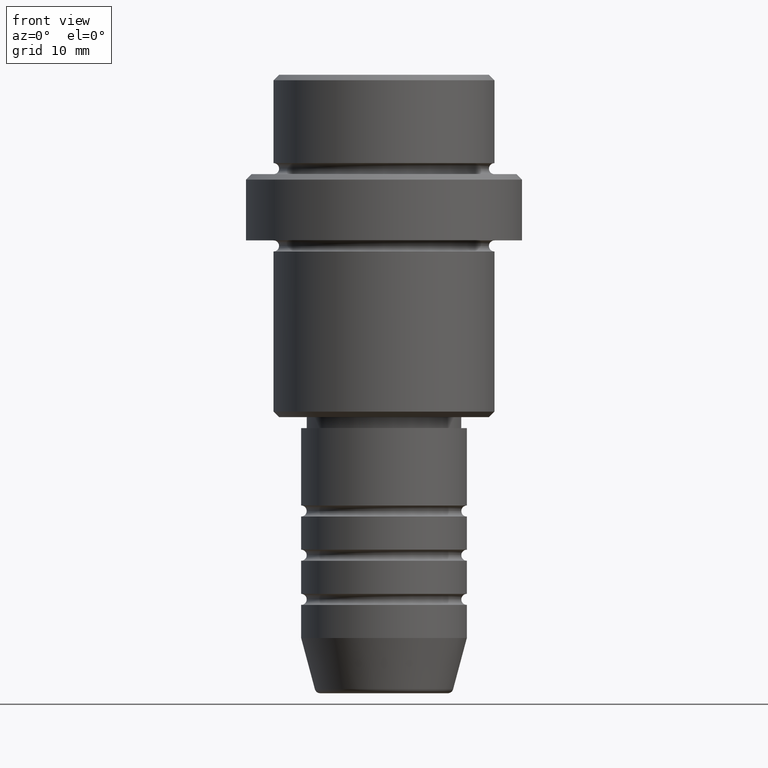
[diagram: clean part render]
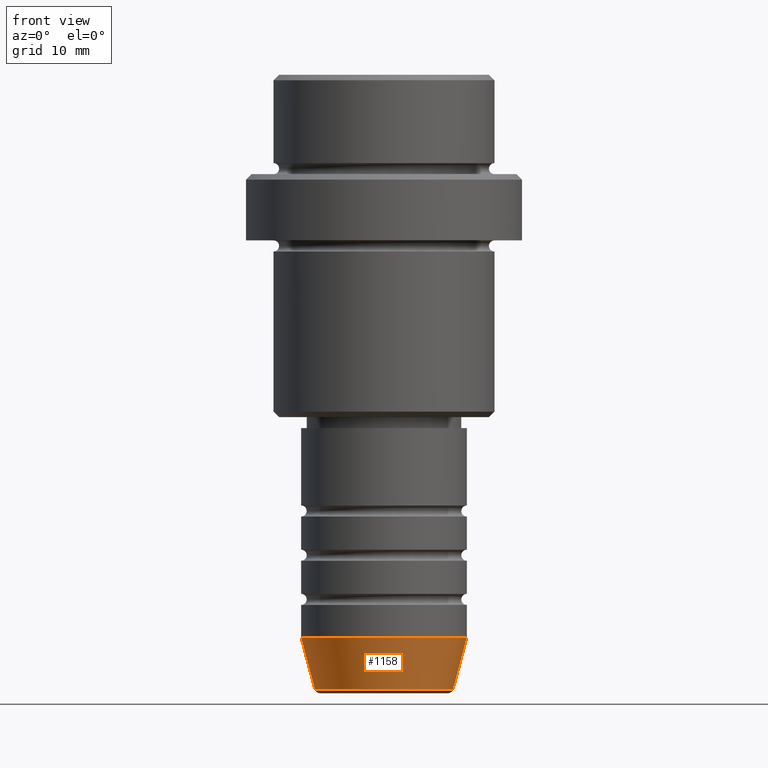
[diagram: same view with one face highlighted and labeled with its STEP entity id]
A machine part, front view. The second image highlights one B-rep face of the part: STEP entity #1158.
In plain terms, the highlighted conical surface has half-angle 15 deg.
Its self-contained STEP definition (entity closure, byte-faithful):
#43 = ORIENTED_EDGE ( 'NONE', *, *, #925, .F. ) ;
#70 = VERTEX_POINT ( 'NONE', #243 ) ;
#78 = CARTESIAN_POINT ( 'NONE',  ( 6.259553456999435106, 0.000000000000000000, -55.62940952255126348 ) ) ;
#93 = CARTESIAN_POINT ( 'NONE',  ( -7.500000000000000000, 9.184850993605147944E-16, -51.00000000000000711 ) ) ;
#178 = EDGE_CURVE ( 'NONE', #1251, #953, #504, .T. ) ;
#219 = VECTOR ( 'NONE', #1160, 1000.000000000000000 ) ;
#243 = CARTESIAN_POINT ( 'NONE',  ( -6.259553456999435106, 8.425296549405627514E-16, -55.62940952255126348 ) ) ;
#316 = CARTESIAN_POINT ( 'NONE',  ( 0.000000000000000000, 0.000000000000000000, -51.00000000000000711 ) ) ;
#328 = CIRCLE ( 'NONE', #645, 7.500000000000000000 ) ;
#357 = FACE_OUTER_BOUND ( 'NONE', #1025, .T. ) ;
#431 = LINE ( 'NONE', #871, #440 ) ;
#440 = VECTOR ( 'NONE', #1189, 1000.000000000000000 ) ;
#504 = LINE ( 'NONE', #725, #219 ) ;
#628 = CARTESIAN_POINT ( 'NONE',  ( 7.500000000000000000, 0.000000000000000000, -51.00000000000000711 ) ) ;
#645 = AXIS2_PLACEMENT_3D ( 'NONE', #316, #751, #1058 ) ;
#692 = DIRECTION ( 'NONE',  ( -0.000000000000000000, -0.000000000000000000, 1.000000000000000000 ) ) ;
#712 = CONICAL_SURFACE ( 'NONE', #830, 7.500000000000000000, 0.2617993877991500740 ) ;
#715 = DIRECTION ( 'NONE',  ( -0.000000000000000000, -0.000000000000000000, 1.000000000000000000 ) ) ;
#717 = ORIENTED_EDGE ( 'NONE', *, *, #178, .T. ) ;
#725 = CARTESIAN_POINT ( 'NONE',  ( 7.500000000000000000, 0.000000000000000000, -51.00000000000000711 ) ) ;
#751 = DIRECTION ( 'NONE',  ( -0.000000000000000000, -0.000000000000000000, 1.000000000000000000 ) ) ;
#792 = CARTESIAN_POINT ( 'NONE',  ( 0.000000000000000000, 0.000000000000000000, -51.00000000000000711 ) ) ;
#804 = AXIS2_PLACEMENT_3D ( 'NONE', #1370, #715, #1155 ) ;
#830 = AXIS2_PLACEMENT_3D ( 'NONE', #792, #692, #860 ) ;
#860 = DIRECTION ( 'NONE',  ( 1.000000000000000000, 0.000000000000000000, 0.000000000000000000 ) ) ;
#871 = CARTESIAN_POINT ( 'NONE',  ( -7.500000000000000000, 9.184850993605147944E-16, -51.00000000000000711 ) ) ;
#917 = ORIENTED_EDGE ( 'NONE', *, *, #1303, .T. ) ;
#919 = CIRCLE ( 'NONE', #804, 6.259553456999435106 ) ;
#925 = EDGE_CURVE ( 'NONE', #1398, #953, #328, .T. ) ;
#953 = VERTEX_POINT ( 'NONE', #628 ) ;
#1008 = ORIENTED_EDGE ( 'NONE', *, *, #1348, .F. ) ;
#1025 = EDGE_LOOP ( 'NONE', ( #1008, #917, #717, #43 ) ) ;
#1058 = DIRECTION ( 'NONE',  ( 1.000000000000000000, 0.000000000000000000, 0.000000000000000000 ) ) ;
#1155 = DIRECTION ( 'NONE',  ( 1.000000000000000000, 0.000000000000000000, 0.000000000000000000 ) ) ;
#1158 = ADVANCED_FACE ( 'NONE', ( #357 ), #712, .T. ) ;
#1160 = DIRECTION ( 'NONE',  ( 0.2588190451025213501, 0.000000000000000000, 0.9659258262890680902 ) ) ;
#1189 = DIRECTION ( 'NONE',  ( -0.2588190451025213501, 3.169619151431772337E-17, 0.9659258262890680902 ) ) ;
#1251 = VERTEX_POINT ( 'NONE', #78 ) ;
#1303 = EDGE_CURVE ( 'NONE', #70, #1251, #919, .T. ) ;
#1348 = EDGE_CURVE ( 'NONE', #70, #1398, #431, .T. ) ;
#1370 = CARTESIAN_POINT ( 'NONE',  ( 0.000000000000000000, 0.000000000000000000, -55.62940952255126348 ) ) ;
#1398 = VERTEX_POINT ( 'NONE', #93 ) ;